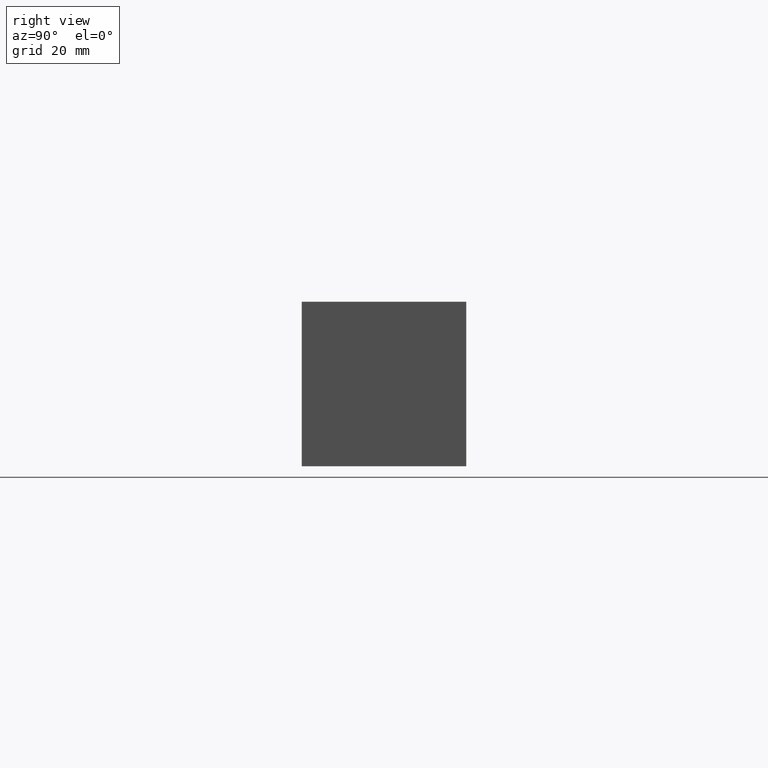
[diagram: clean part render]
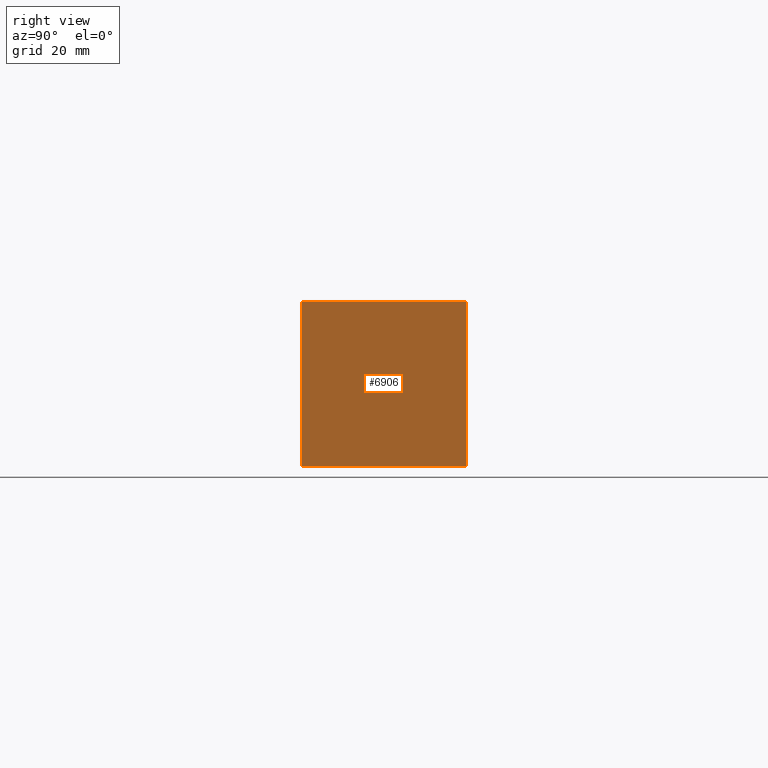
[diagram: same view with one face highlighted and labeled with its STEP entity id]
A machine part, right view. The second image highlights one B-rep face of the part: STEP entity #6906.
In plain terms, the highlighted planar face has unit normal (1, 0, 0).
Its self-contained STEP definition (entity closure, byte-faithful):
#412=PLANE('',#7268);
#761=FACE_OUTER_BOUND('',#1156,.T.);
#1156=EDGE_LOOP('',(#6162,#6163,#6164,#6165));
#1457=LINE('',#10444,#2166);
#1873=LINE('',#11594,#2582);
#1874=LINE('',#11597,#2583);
#1875=LINE('',#11598,#2584);
#2166=VECTOR('',#7731,10.);
#2582=VECTOR('',#8667,10.);
#2583=VECTOR('',#8670,10.);
#2584=VECTOR('',#8671,10.);
#3025=VERTEX_POINT('',#10441);
#3026=VERTEX_POINT('',#10443);
#3372=VERTEX_POINT('',#11592);
#3373=VERTEX_POINT('',#11596);
#3801=EDGE_CURVE('',#3025,#3026,#1457,.T.);
#4309=EDGE_CURVE('',#3372,#3026,#1873,.T.);
#4310=EDGE_CURVE('',#3373,#3372,#1874,.T.);
#4311=EDGE_CURVE('',#3373,#3025,#1875,.T.);
#6162=ORIENTED_EDGE('',*,*,#4310,.T.);
#6163=ORIENTED_EDGE('',*,*,#4309,.T.);
#6164=ORIENTED_EDGE('',*,*,#3801,.F.);
#6165=ORIENTED_EDGE('',*,*,#4311,.F.);
#6906=ADVANCED_FACE('',(#761),#412,.T.);
#7268=AXIS2_PLACEMENT_3D('',#11595,#8668,#8669);
#7731=DIRECTION('',(0.,1.,0.));
#8667=DIRECTION('',(0.,0.,1.));
#8668=DIRECTION('center_axis',(1.,0.,0.));
#8669=DIRECTION('ref_axis',(0.,1.,0.));
#8670=DIRECTION('',(0.,1.,0.));
#8671=DIRECTION('',(0.,0.,1.));
#10441=CARTESIAN_POINT('',(187.325,0.,44.45));
#10443=CARTESIAN_POINT('',(187.325,44.45,44.45));
#10444=CARTESIAN_POINT('',(187.325,0.,44.45));
#11592=CARTESIAN_POINT('',(187.325,44.45,0.));
#11594=CARTESIAN_POINT('',(187.325,44.45,0.));
#11595=CARTESIAN_POINT('Origin',(187.325,0.,0.));
#11596=CARTESIAN_POINT('',(187.325,0.,0.));
#11597=CARTESIAN_POINT('',(187.325,0.,0.));
#11598=CARTESIAN_POINT('',(187.325,0.,0.));